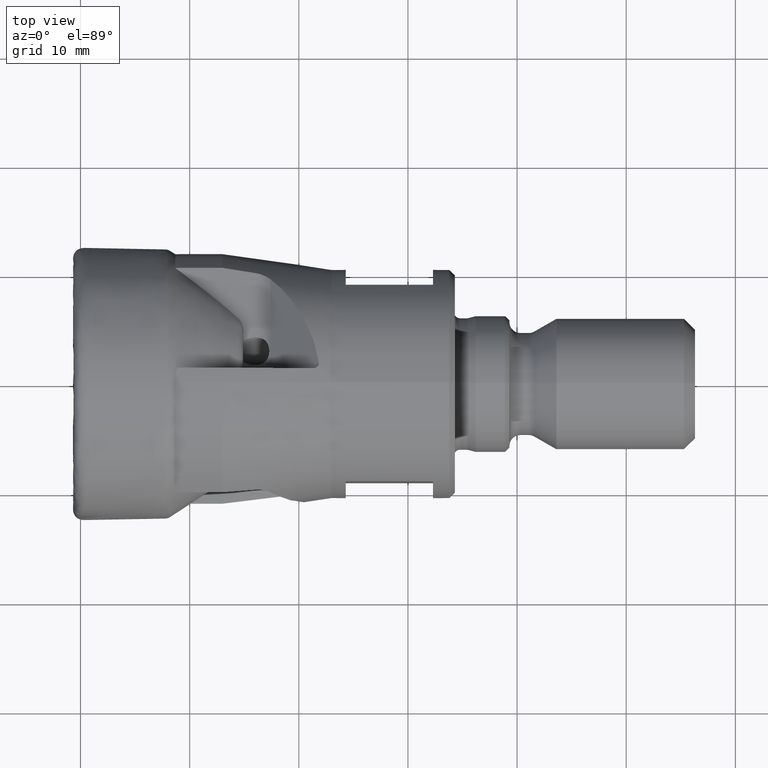
[diagram: clean part render]
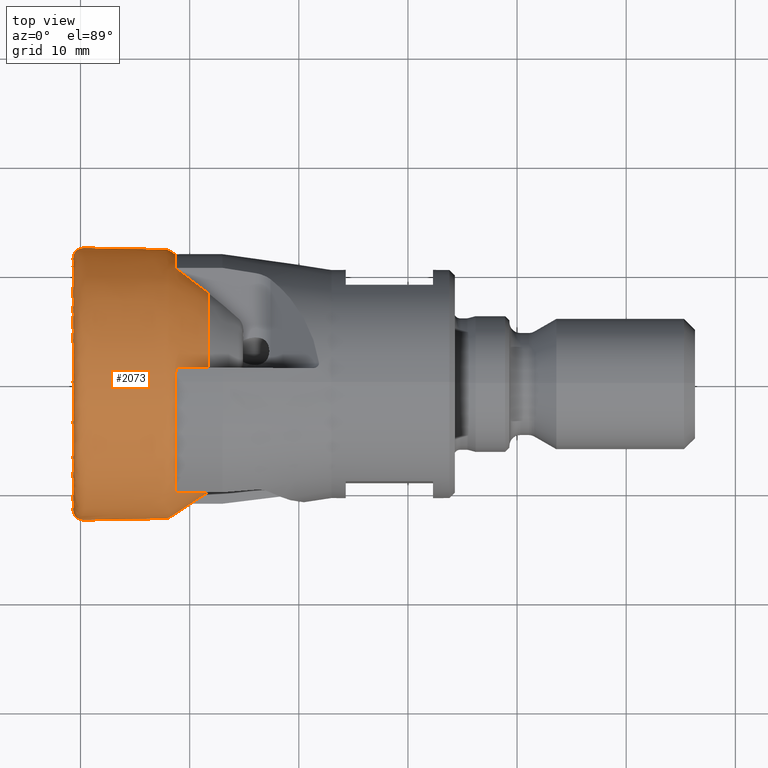
[diagram: same view with one face highlighted and labeled with its STEP entity id]
A machine part, top view. The second image highlights one B-rep face of the part: STEP entity #2073.
In plain terms, the highlighted face is a freeform B-spline surface patch.
Its self-contained STEP definition (entity closure, byte-faithful):
#4 = CARTESIAN_POINT ( 'NONE',  ( 9.697854534202885900, 9.785452042334226200, 5.500000000000000900 ) ) ;
#20 = CARTESIAN_POINT ( 'NONE',  ( 9.312644192174170500, 0.8146614343134170900, 11.44944218127393000 ) ) ;
#45 = CARTESIAN_POINT ( 'NONE',  ( 3.618397559044042000, -12.40899006193122000, 24.81798012386243400 ) ) ;
#61 = CIRCLE ( 'NONE', #3847, 11.89093735962494800 ) ;
#65 = CARTESIAN_POINT ( 'NONE',  ( 0.7427827985230336400, -12.45664443451542700, 0.0000000000000000000 ) ) ;
#70 = CARTESIAN_POINT ( 'NONE',  ( 11.02533837348221400, -10.35061665418278100, 0.0000000000000000000 ) ) ;
#87 = CARTESIAN_POINT ( 'NONE',  ( 11.36594401074865100, -10.12630852607284200, 0.0000000000000000000 ) ) ;
#108 = CARTESIAN_POINT ( 'NONE',  ( 2.503799197649001100, 12.43026562818764100, 1.522268501411135700E-015 ) ) ;
#111 = CARTESIAN_POINT ( 'NONE',  ( 7.931598902397339200, -12.32988648279885700, 24.65977296559770300 ) ) ;
#126 = CARTESIAN_POINT ( 'NONE',  ( 8.816966947396640100, -11.80685904800107400, 23.61371809600214500 ) ) ;
#139 = ORIENTED_EDGE ( 'NONE', *, *, #4576, .F. ) ;
#149 = CARTESIAN_POINT ( 'NONE',  ( 9.613026490505429700, 11.28079217561241700, 1.381498602971025400E-015 ) ) ;
#157 = CARTESIAN_POINT ( 'NONE',  ( 1.280669050184723100, -12.45564415482756500, 0.0000000000000000000 ) ) ;
#168 = ORIENTED_EDGE ( 'NONE', *, *, #3575, .F. ) ;
#195 = CARTESIAN_POINT ( 'NONE',  ( 11.69992267080788700, -9.906364266846539500, 19.81272853369307500 ) ) ;
#238 = CARTESIAN_POINT ( 'NONE',  ( 11.69992267080788700, 9.906364266846541300, 1.213179729058133200E-015 ) ) ;
#240 = B_SPLINE_CURVE_WITH_KNOTS ( 'NONE', 3,
 ( #4324, #1679, #4783, #2109 ),
 .UNSPECIFIED., .F., .F.,
 ( 4, 4 ),
 ( 0.003687136986551863400, 0.003879033988802410200 ),
 .UNSPECIFIED. ) ;
#241 = CARTESIAN_POINT ( 'NONE',  ( 8.684308047586071700, 0.7668746973327035300, 11.86618281036977500 ) ) ;
#252 = DIRECTION ( 'NONE',  ( 0.0000000000000000000, -1.000000000000000000, 0.0000000000000000000 ) ) ;
#281 = CARTESIAN_POINT ( 'NONE',  ( 2.999999999999999100, 0.0000000000000000000, 0.0000000000000000000 ) ) ;
#347 = VERTEX_POINT ( 'NONE', #3973 ) ;
#352 = CARTESIAN_POINT ( 'NONE',  ( 9.954650138526782000, -11.05570116512856400, 0.0000000000000000000 ) ) ;
#355 = CARTESIAN_POINT ( 'NONE',  ( 11.20412038278668700, -9.079077500251957000, 4.725423516291996900 ) ) ;
#404 = B_SPLINE_CURVE_WITH_KNOTS ( 'NONE', 3,
 ( #1191, #4757, #3552, #2210 ),
 .UNSPECIFIED., .F., .F.,
 ( 4, 4 ),
 ( 0.003952355177794303900, 0.004168830985685621800 ),
 .UNSPECIFIED. ) ;
#416 = AXIS2_PLACEMENT_3D ( 'NONE', #281, #3370, #2029 ) ;
#431 = CARTESIAN_POINT ( 'NONE',  ( 2.201019463863450800, -9.072201735140403400, 0.0000000000000000000 ) ) ;
#436 = CARTESIAN_POINT ( 'NONE',  ( 8.810042783175827500, 0.7812887099404332000, 11.78350844684071000 ) ) ;
#445 = CARTESIAN_POINT ( 'NONE',  ( 1.873232307279118800, -12.44144521055320000, 0.0000000000000000000 ) ) ;
#449 = CARTESIAN_POINT ( 'NONE',  ( 9.192252441842184000, 10.16547790507238600, 5.500000000000000900 ) ) ;
#497 = CARTESIAN_POINT ( 'NONE',  ( -0.2331093749268607400, -12.38291119350498300, 0.0000000000000000000 ) ) ;
#499 = CARTESIAN_POINT ( 'NONE',  ( 8.457634350654979400, -12.03595903142141300, 0.0000000000000000000 ) ) ;
#509 = CARTESIAN_POINT ( 'NONE',  ( 2.148070445430538400, 9.108993180804803900, 1.115529934232767100E-015 ) ) ;
#514 = CARTESIAN_POINT ( 'NONE',  ( 7.127617296034902200, 12.34311127391845600, 1.511595171312384500E-015 ) ) ;
#530 = CARTESIAN_POINT ( 'NONE',  ( 8.167987616742655300, 12.24025750950475800, 1.498999217975435700E-015 ) ) ;
#537 = CARTESIAN_POINT ( 'NONE',  ( 6.466077565421617400, -12.35482876684429600, 24.70965753368858100 ) ) ;
#546 = CARTESIAN_POINT ( 'NONE',  ( 8.684308047586071700, 0.0000000000000000000, 0.0000000000000000000 ) ) ;
#555 = CARTESIAN_POINT ( 'NONE',  ( 6.466077565421617400, 12.35482876684429100, 24.70965753368858100 ) ) ;
#573 = CARTESIAN_POINT ( 'NONE',  ( 7.572863387765953500, 12.33263988398824300, 1.510312795896318700E-015 ) ) ;
#578 = CARTESIAN_POINT ( 'NONE',  ( 7.931598902397339200, 12.32988648279885700, 1.509975601500983500E-015 ) ) ;
#592 = CARTESIAN_POINT ( 'NONE',  ( 11.58585300382495500, 9.981485319141596000, 1.222379404682305500E-015 ) ) ;
#641 = EDGE_CURVE ( 'NONE', #4559, #1741, #2387, .T. ) ;
#659 = DIRECTION ( 'NONE',  ( -1.000000000000000000, -0.0000000000000000000, -0.0000000000000000000 ) ) ;
#661 = CARTESIAN_POINT ( 'NONE',  ( 11.69992267080788700, -9.906364266846541300, 0.0000000000000000000 ) ) ;
#676 = CARTESIAN_POINT ( 'NONE',  ( 1.873232307279118800, 12.44144521055320000, 1.523637605387114200E-015 ) ) ;
#756 = B_SPLINE_CURVE_WITH_KNOTS ( 'NONE', 3,
 ( #2666, #436, #4832, #3523, #20, #3092, #3989, #1328, #4431, #2679 ),
 .UNSPECIFIED., .F., .F.,
 ( 4, 2, 2, 2, 4 ),
 ( 0.0002996725593524206800, 0.0007529649195381801500, 0.001206257279723939600, 0.002112842000095458600, 0.003926011440838503800 ),
 .UNSPECIFIED. ) ;
#807 = ORIENTED_EDGE ( 'NONE', *, *, #4763, .F. ) ;
#832 = VERTEX_POINT ( 'NONE', #3464 ) ;
#837 = CARTESIAN_POINT ( 'NONE',  ( -0.6087784501833377600, -11.03092844382917500, 22.06185688765834700 ) ) ;
#864 = CARTESIAN_POINT ( 'NONE',  ( 5.729651580530291900, 12.36908483579386700, 1.514776015253702500E-015 ) ) ;
#865 = CARTESIAN_POINT ( 'NONE',  ( 0.3477757984332352500, -10.32826223823449900, 0.0000000000000000000 ) ) ;
#866 = CARTESIAN_POINT ( 'NONE',  ( 1.494868875938148100, -9.562868073355081900, 0.0000000000000000000 ) ) ;
#882 = CARTESIAN_POINT ( 'NONE',  ( 2.712359815875601500, 8.819488321375047200, 1.080075814288941200E-015 ) ) ;
#884 = CARTESIAN_POINT ( 'NONE',  ( 8.816966947396641900, -11.80685904800107400, 0.0000000000000000000 ) ) ;
#889 = CARTESIAN_POINT ( 'NONE',  ( 2.999999999999999100, 0.0000000000000000000, 0.0000000000000000000 ) ) ;
#906 = CARTESIAN_POINT ( 'NONE',  ( 1.494868875938148100, -9.562868073355081900, 0.0000000000000000000 ) ) ;
#918 = CARTESIAN_POINT ( 'NONE',  ( 8.457634350654979400, -12.03595903142141300, 0.0000000000000000000 ) ) ;
#925 = B_SPLINE_CURVE_WITH_KNOTS ( 'NONE', 3,
 ( #3576, #882, #509, #2193, #1787, #4901, #1816, #3596, #5301, #1323, #2229, #2693, #4019, #1355, #1801, #4922, #4428, #2268, #5352, #3163, #864, #1308, #5415, #573, #2749, #530, #3248, #5432, #997 ),
 .UNSPECIFIED., .F., .F.,
 ( 4, 1, 1, 1, 1, 1, 1, 1, 1, 1, 1, 1, 1, 1, 1, 1, 1, 1, 1, 1, 1, 1, 1, 1, 1, 1, 4 ),
 ( 0.005206686058441639000, 0.03485770881821660000, 0.05507946644783250100, 0.06943857563610003600, 0.09158117670834956000, 0.1092554171633217100, 0.1216599455086802800, 0.1344408069046131000, 0.1487155461250843400, 0.1596131329079916700, 0.1748590712078582100, 0.1853888897470992700, 0.2007221162048279900, 0.2180797627302767900, 0.2331128372883491700, 0.2514738600996334100, 0.2655145074047095000, 0.2754002533527893400, 0.2993621918551556700, 0.3196282905980347700, 0.3433429256770412800, 0.3586542540690916300, 0.3728470926088104900, 0.3792658224864324800, 0.3873682078360112200, 0.3926476339522040900, 0.4031530436747359800 ),
 .UNSPECIFIED. ) ;
#935 = CARTESIAN_POINT ( 'NONE',  ( 7.127617296034902200, -12.34311127391845600, 0.0000000000000000000 ) ) ;
#941 = CARTESIAN_POINT ( 'NONE',  ( 4.885557707654206700, -12.38497825617316600, 24.76995651234632200 ) ) ;
#959 = EDGE_LOOP ( 'NONE', ( #139, #3123, #2351, #3631, #1593, #4586, #5541, #807, #3928, #3591, #3095, #168, #1008, #3599, #2776, #2198 ) ) ;
#961 = CARTESIAN_POINT ( 'NONE',  ( 6.466077565421617400, -12.35482876684429600, 0.0000000000000000000 ) ) ;
#962 = CARTESIAN_POINT ( 'NONE',  ( 3.099848958126749700, -8.012817241853138500, 2.878606574653674400 ) ) ;
#983 = CARTESIAN_POINT ( 'NONE',  ( 3.093057274502867500, -12.41888942860262400, 24.83777885720523700 ) ) ;
#985 = CARTESIAN_POINT ( 'NONE',  ( 5.729651580530291900, -12.36908483579386700, 0.0000000000000000000 ) ) ;
#997 = CARTESIAN_POINT ( 'NONE',  ( 8.684308047586071700, 11.89093735962494800, 1.456219837632640100E-015 ) ) ;
#1001 = CARTESIAN_POINT ( 'NONE',  ( 9.954650138526782000, 11.05570116512856400, 1.353932904420436100E-015 ) ) ;
#1008 = ORIENTED_EDGE ( 'NONE', *, *, #3044, .T. ) ;
#1016 = CARTESIAN_POINT ( 'NONE',  ( 3.093057274502867500, 12.41888942860261800, 24.83777885720523700 ) ) ;
#1025 = CARTESIAN_POINT ( 'NONE',  ( 7.931598902397339200, 12.32988648279885200, 24.65977296559770300 ) ) ;
#1074 = EDGE_CURVE ( 'NONE', #1741, #5686, #240, .T. ) ;
#1084 = CARTESIAN_POINT ( 'NONE',  ( 2.999999999999999100, -1.119999999999999900, 8.521609932996399900 ) ) ;
#1142 = DIRECTION ( 'NONE',  ( 1.000000000000000000, 0.0000000000000000000, 0.0000000000000000000 ) ) ;
#1164 = CIRCLE ( 'NONE', #4855, 8.471322961863810600 ) ;
#1191 = CARTESIAN_POINT ( 'NONE',  ( 2.999999999999997800, 6.604713154266651300, 5.499999999999997300 ) ) ;
#1199 = CARTESIAN_POINT ( 'NONE',  ( 11.69992267080788700, -8.882789371799694000, 4.385442504890058000 ) ) ;
#1228 = CARTESIAN_POINT ( 'NONE',  ( 4.213313843509619800, -12.39772127159911200, 0.0000000000000000000 ) ) ;
#1229 = CARTESIAN_POINT ( 'NONE',  ( 4.885557707654206700, -12.38497825617316500, 0.0000000000000000000 ) ) ;
#1277 = CARTESIAN_POINT ( 'NONE',  ( -0.7317178983251391200, -11.53285104951244700, 0.0000000000000000000 ) ) ;
#1281 = B_SPLINE_CURVE_WITH_KNOTS ( 'NONE', 3,
 ( #4027, #3145, #962, #5383 ),
 .UNSPECIFIED., .F., .F.,
 ( 4, 4 ),
 ( 0.003951209680980457600, 0.004167688017339450300 ),
 .UNSPECIFIED. ) ;
#1297 = CARTESIAN_POINT ( 'NONE',  ( -0.2138426126984946700, 10.65069075299570200, 1.304333433936449800E-015 ) ) ;
#1304 = VERTEX_POINT ( 'NONE', #2270 ) ;
#1308 = CARTESIAN_POINT ( 'NONE',  ( 6.466077565421617400, 12.35482876684429600, 1.513030150332951000E-015 ) ) ;
#1310 = CARTESIAN_POINT ( 'NONE',  ( 0.3477757984332352500, -10.32826223823449900, 0.0000000000000000000 ) ) ;
#1323 = CARTESIAN_POINT ( 'NONE',  ( -0.5939614367127222800, 12.00772177293700900, 1.470521803427928800E-015 ) ) ;
#1326 = DIRECTION ( 'NONE',  ( -1.000000000000000000, -0.0000000000000000000, -0.0000000000000000000 ) ) ;
#1328 = CARTESIAN_POINT ( 'NONE',  ( 10.69488647617847700, 0.9011636507506480800, 10.52991939404901200 ) ) ;
#1338 = CARTESIAN_POINT ( 'NONE',  ( 0.9026356447868471000, -9.945694681804564400, 0.0000000000000000000 ) ) ;
#1355 = CARTESIAN_POINT ( 'NONE',  ( 1.280669050184723100, 12.45564415482756500, 1.525376474552801800E-015 ) ) ;
#1357 = CARTESIAN_POINT ( 'NONE',  ( 5.729651580530291900, -12.36908483579386700, 0.0000000000000000000 ) ) ;
#1387 = CARTESIAN_POINT ( 'NONE',  ( 7.127617296034902200, -12.34311127391845600, 0.0000000000000000000 ) ) ;
#1400 = CARTESIAN_POINT ( 'NONE',  ( 8.816966947396640100, 11.80685904800107300, 23.61371809600214500 ) ) ;
#1419 = B_SPLINE_CURVE_WITH_KNOTS ( 'NONE', 3,
 ( #3558, #3086, #3539, #906, #1338, #865, #4871, #4020, #3577, #3108, #497, #2094, #65, #5630, #445, #4000, #4444, #2695, #3125, #1788, #1357, #3142, #935, #3966, #4459, #4308, #918, #884, #5191, #2552, #352, #2768, #4479, #4562, #4102, #5400, #4522 ),
 .UNSPECIFIED., .F., .F.,
 ( 4, 1, 1, 1, 1, 1, 1, 1, 1, 1, 1, 1, 1, 1, 1, 1, 1, 1, 1, 1, 1, 1, 1, 1, 1, 1, 1, 1, 1, 1, 1, 1, 1, 1, 4 ),
 ( 0.0000000000000000000, 0.03485770881821660000, 0.05507946644783250100, 0.06943857563610003600, 0.09158117670834957400, 0.1092554171633217100, 0.1216599455086802800, 0.1344408069046131000, 0.1487155461250843400, 0.1596131329079916700, 0.1748590712078581800, 0.1853888897470992700, 0.2007221162048279900, 0.2180797627302767900, 0.2331128372883491400, 0.2514738600996334100, 0.2655145074047095000, 0.2754002533527893400, 0.2993621918551556700, 0.3196282905980347100, 0.3433429256770412800, 0.3586542540690916300, 0.3728470926088104900, 0.3792658224864324200, 0.3873682078360112200, 0.3926476339522041400, 0.4077926530532423600, 0.4216536615863865600, 0.4334034525286211700, 0.4438325126030546200, 0.4545797539371134700, 0.4671771103125601500, 0.4788081670242497200, 0.4890075464082854800, 0.4999999999999999400 ),
 .UNSPECIFIED. ) ;
#1420 = CARTESIAN_POINT ( 'NONE',  ( 7.127617296034903100, 12.34311127391845300, 24.68622254783690600 ) ) ;
#1444 = CARTESIAN_POINT ( 'NONE',  ( 6.466077565421617400, 12.35482876684429600, 1.513030150332951000E-015 ) ) ;
#1468 = CARTESIAN_POINT ( 'NONE',  ( 10.66807731982033200, -10.58589076227329400, 0.0000000000000000000 ) ) ;
#1510 = DIRECTION ( 'NONE',  ( 0.0000000000000000000, -1.000000000000000000, 0.0000000000000000000 ) ) ;
#1514 = VERTEX_POINT ( 'NONE', #3412 ) ;
#1535 = CARTESIAN_POINT ( 'NONE',  ( 1.873232307279119000, 12.44144521055319400, 24.88289042110638900 ) ) ;
#1568 = DIRECTION ( 'NONE',  ( -1.000000000000000000, -0.0000000000000000000, -0.0000000000000000000 ) ) ;
#1590 = CARTESIAN_POINT ( 'NONE',  ( 4.213313843509619800, -12.39772127159911400, 24.79544254319821700 ) ) ;
#1591 = VERTEX_POINT ( 'NONE', #2439 ) ;
#1593 = ORIENTED_EDGE ( 'NONE', *, *, #1074, .F. ) ;
#1661 = CARTESIAN_POINT ( 'NONE',  ( 9.949986535004933700, -9.560430860448953200, 5.559151992547215900 ) ) ;
#1679 = CARTESIAN_POINT ( 'NONE',  ( 3.050296699543893400, -1.120000000000000300, 8.482000013285096800 ) ) ;
#1699 = CARTESIAN_POINT ( 'NONE',  ( 0.3477757984332352500, 10.32826223823449800, 20.65652447646899500 ) ) ;
#1736 = CARTESIAN_POINT ( 'NONE',  ( 8.939606687400869900, -9.940984578413568000, 6.218290367071171300 ) ) ;
#1738 = CARTESIAN_POINT ( 'NONE',  ( 1.494868875938148100, -9.562868073355080200, 19.12573614671015700 ) ) ;
#1741 = VERTEX_POINT ( 'NONE', #1084 ) ;
#1749 = CARTESIAN_POINT ( 'NONE',  ( 2.503799197649001100, 12.43026562818763700, 24.86053125637527500 ) ) ;
#1755 = CARTESIAN_POINT ( 'NONE',  ( 2.830805181008440500, 8.759725705247921800, 1.072757004634066000E-015 ) ) ;
#1769 = DIRECTION ( 'NONE',  ( 0.0000000000000000000, 0.0000000000000000000, 1.000000000000000000 ) ) ;
#1779 = CARTESIAN_POINT ( 'NONE',  ( 3.146733260527753800, -1.120000000000003000, 8.396958540102529500 ) ) ;
#1787 = CARTESIAN_POINT ( 'NONE',  ( 0.9026356447868471000, 9.945694681804564400, 1.217996315736881400E-015 ) ) ;
#1788 = CARTESIAN_POINT ( 'NONE',  ( 4.885557707654206700, -12.38497825617316500, 0.0000000000000000000 ) ) ;
#1801 = CARTESIAN_POINT ( 'NONE',  ( 1.873232307279118800, 12.44144521055320000, 1.523637605387114200E-015 ) ) ;
#1807 = CARTESIAN_POINT ( 'NONE',  ( 9.613026490505429700, -11.28079217561241700, 22.56158435122483000 ) ) ;
#1816 = CARTESIAN_POINT ( 'NONE',  ( -0.2138426126984946700, 10.65069075299570200, 1.304333433936449800E-015 ) ) ;
#1820 = CARTESIAN_POINT ( 'NONE',  ( 4.885557707654206700, 12.38497825617316100, 24.76995651234632200 ) ) ;
#1839 = CARTESIAN_POINT ( 'NONE',  ( 8.167987616742655300, -12.24025750950475800, 0.0000000000000000000 ) ) ;
#1851 = DIRECTION ( 'NONE',  ( 1.000000000000000000, 0.0000000000000000000, 0.0000000000000000000 ) ) ;
#1866 = CARTESIAN_POINT ( 'NONE',  ( 8.457634350654979400, 12.03595903142141000, 24.07191806284281900 ) ) ;
#1879 = CARTESIAN_POINT ( 'NONE',  ( 4.885557707654206700, 12.38497825617316500, 1.516722397893203500E-015 ) ) ;
#1892 = CIRCLE ( 'NONE', #4312, 8.471322961863810600 ) ;
#1921 = AXIS2_PLACEMENT_3D ( 'NONE', #4449, #3971, #3111 ) ;
#1924 = CARTESIAN_POINT ( 'NONE',  ( 11.58585300382495500, -9.981485319141596000, 19.96297063828318800 ) ) ;
#1972 = CIRCLE ( 'NONE', #4384, 9.906364266846541300 ) ;
#1978 = CARTESIAN_POINT ( 'NONE',  ( 3.146733260527738700, 0.0000000000000000000, 0.0000000000000000000 ) ) ;
#1999 = DIRECTION ( 'NONE',  ( -1.000000000000000000, -0.0000000000000000000, -0.0000000000000000000 ) ) ;
#2029 = DIRECTION ( 'NONE',  ( 0.0000000000000000000, 0.0000000000000000000, 1.000000000000000000 ) ) ;
#2073 = ADVANCED_FACE ( 'NONE', ( #2636 ), #2885, .T. ) ;
#2094 = CARTESIAN_POINT ( 'NONE',  ( 0.2348483877683119900, -12.49277643049290300, 0.0000000000000000000 ) ) ;
#2109 = CARTESIAN_POINT ( 'NONE',  ( 3.146733260527753800, -1.120000000000003000, 8.396958540102529500 ) ) ;
#2138 = CARTESIAN_POINT ( 'NONE',  ( 1.280669050184723100, 12.45564415482756200, 24.91128830965512400 ) ) ;
#2167 = CARTESIAN_POINT ( 'NONE',  ( -0.7317178983251390000, 11.53285104951244300, 23.06570209902489000 ) ) ;
#2174 = CARTESIAN_POINT ( 'NONE',  ( 0.9026356447868471000, -9.945694681804564400, 19.89138936360912200 ) ) ;
#2193 = CARTESIAN_POINT ( 'NONE',  ( 1.494868875938148100, 9.562868073355081900, 1.171113577670271600E-015 ) ) ;
#2194 = VERTEX_POINT ( 'NONE', #4761 ) ;
#2197 = CARTESIAN_POINT ( 'NONE',  ( 1.494868875938148100, 9.562868073355078400, 19.12573614671015700 ) ) ;
#2198 = ORIENTED_EDGE ( 'NONE', *, *, #2710, .F. ) ;
#2210 = CARTESIAN_POINT ( 'NONE',  ( 3.146733260527739600, 6.443082548299460500, 5.499999999999997300 ) ) ;
#2212 = VERTEX_POINT ( 'NONE', #2215 ) ;
#2215 = CARTESIAN_POINT ( 'NONE',  ( 11.69992267080788700, -8.882789371799694000, 4.385442504890058000 ) ) ;
#2218 = CARTESIAN_POINT ( 'NONE',  ( 1.873232307279118800, -12.44144521055320000, 0.0000000000000000000 ) ) ;
#2221 = CARTESIAN_POINT ( 'NONE',  ( 8.684308047565556500, -10.03439173743338100, 6.380076312284160200 ) ) ;
#2229 = CARTESIAN_POINT ( 'NONE',  ( -0.2331093749268607400, 12.38291119350498300, 1.516469255725181000E-015 ) ) ;
#2231 = EDGE_CURVE ( 'NONE', #4038, #1591, #1419, .T. ) ;
#2250 = CARTESIAN_POINT ( 'NONE',  ( 10.66807731982033200, 10.58589076227329300, 21.17178152454658500 ) ) ;
#2268 = CARTESIAN_POINT ( 'NONE',  ( 3.618397559044042500, 12.40899006193121900, 1.519662995999538200E-015 ) ) ;
#2270 = CARTESIAN_POINT ( 'NONE',  ( 3.146733260527739600, -7.984680994964115500, 2.829873165507583700 ) ) ;
#2274 = CARTESIAN_POINT ( 'NONE',  ( 9.954650138526782000, -11.05570116512856400, 22.11140233025712800 ) ) ;
#2293 = CARTESIAN_POINT ( 'NONE',  ( 7.572863387765953500, 12.33263988398824300, 1.510312795896318700E-015 ) ) ;
#2310 = CARTESIAN_POINT ( 'NONE',  ( 8.816966947396641900, 11.80685904800107400, 1.445923214111848200E-015 ) ) ;
#2335 = CARTESIAN_POINT ( 'NONE',  ( 7.572863387765954400, -12.33263988398824500, 24.66527976797647900 ) ) ;
#2351 = ORIENTED_EDGE ( 'NONE', *, *, #2634, .T. ) ;
#2387 = CIRCLE ( 'NONE', #416, 8.594895918517158500 ) ;
#2402 = AXIS2_PLACEMENT_3D ( 'NONE', #889, #1326, #1769 ) ;
#2439 = CARTESIAN_POINT ( 'NONE',  ( 11.69992267080788700, -9.906364266846541300, 0.0000000000000000000 ) ) ;
#2452 = CARTESIAN_POINT ( 'NONE',  ( 3.146733260527738300, 8.471322961863808800, 16.94264592372761800 ) ) ;
#2497 = EDGE_CURVE ( 'NONE', #5686, #2569, #1164, .T. ) ;
#2552 = CARTESIAN_POINT ( 'NONE',  ( 9.613026490505429700, -11.28079217561241700, 0.0000000000000000000 ) ) ;
#2569 = VERTEX_POINT ( 'NONE', #5127 ) ;
#2592 = CARTESIAN_POINT ( 'NONE',  ( -0.2138426126984946400, -10.65069075299570200, 21.30138150599140100 ) ) ;
#2634 = EDGE_CURVE ( 'NONE', #3401, #2569, #404, .T. ) ;
#2636 = FACE_OUTER_BOUND ( 'NONE', #959, .T. ) ;
#2641 = CARTESIAN_POINT ( 'NONE',  ( 0.2348483877683120200, -12.49277643049290100, 24.98555286098579500 ) ) ;
#2642 = CARTESIAN_POINT ( 'NONE',  ( 0.9026356447868471000, 9.945694681804564400, 1.217996315736881400E-015 ) ) ;
#2666 = CARTESIAN_POINT ( 'NONE',  ( 8.684308047586071700, 0.7668746973327035300, 11.86618281036977500 ) ) ;
#2679 = CARTESIAN_POINT ( 'NONE',  ( 11.69992267080787200, 0.9559680899435525300, 9.860130729278584000 ) ) ;
#2693 = CARTESIAN_POINT ( 'NONE',  ( 0.2348483877683119900, 12.49277643049290300, 1.529923866806663000E-015 ) ) ;
#2695 = CARTESIAN_POINT ( 'NONE',  ( 3.618397559044042500, -12.40899006193121900, 0.0000000000000000000 ) ) ;
#2710 = EDGE_CURVE ( 'NONE', #832, #4342, #61, .T. ) ;
#2720 = CARTESIAN_POINT ( 'NONE',  ( 10.66807731982033200, 10.58589076227329400, 1.296397723814152500E-015 ) ) ;
#2736 = CARTESIAN_POINT ( 'NONE',  ( 9.238802728569901000, 11.52673974379141300, 23.05347948758283400 ) ) ;
#2749 = CARTESIAN_POINT ( 'NONE',  ( 7.931598902397339200, 12.32988648279885700, 1.509975601500983500E-015 ) ) ;
#2752 = CARTESIAN_POINT ( 'NONE',  ( 10.30513665564160800, 10.82491709291735100, 1.325670006887670500E-015 ) ) ;
#2768 = CARTESIAN_POINT ( 'NONE',  ( 10.30513665564160800, -10.82491709291735100, 0.0000000000000000000 ) ) ;
#2772 = CARTESIAN_POINT ( 'NONE',  ( 9.613026490505429700, 11.28079217561241300, 22.56158435122483000 ) ) ;
#2776 = ORIENTED_EDGE ( 'NONE', *, *, #3980, .T. ) ;
#2793 = CARTESIAN_POINT ( 'NONE',  ( 8.816966947396641900, -11.80685904800107400, 0.0000000000000000000 ) ) ;
#2879 = CARTESIAN_POINT ( 'NONE',  ( 2.999999999999997800, 6.604713154266651300, 5.499999999999997300 ) ) ;
#2885 =( BOUNDED_SURFACE ( )  B_SPLINE_SURFACE ( 3, 3, ( 
 ( #2957, #5095, #2452, #5283 ),
 ( #3073, #3087, #4873, #1755 ),
 ( #431, #4407, #3518, #5719 ),
 ( #866, #1738, #2197, #4853 ),
 ( #3969, #2174, #5264, #2642 ),
 ( #1310, #3038, #1699, #5214 ),
 ( #5236, #2592, #5708, #1297 ),
 ( #3488, #837, #3062, #3936 ),
 ( #1277, #4836, #2167, #5255 ),
 ( #5084, #3783, #3763, #5051 ),
 ( #3295, #5291, #3698, #3722 ),
 ( #4244, #2641, #3794, #5061 ),
 ( #3002, #5124, #3065, #5006 ),
 ( #157, #4815, #2138, #5723 ),
 ( #2218, #3271, #1535, #676 ),
 ( #4513, #5673, #1749, #108 ),
 ( #3630, #983, #1016, #3695 ),
 ( #4585, #45, #4565, #5483 ),
 ( #1228, #1590, #4911, #4720 ),
 ( #1229, #941, #1820, #1879 ),
 ( #985, #4084, #3212, #4962 ),
 ( #961, #537, #555, #1444 ),
 ( #1387, #3655, #1420, #514 ),
 ( #4546, #2335, #5001, #2293 ),
 ( #4525, #111, #1025, #578 ),
 ( #1839, #5339, #4115, #5420 ),
 ( #499, #3633, #1866, #4980 ),
 ( #2793, #126, #1400, #2310 ),
 ( #5382, #5356, #2736, #5405 ),
 ( #3228, #1807, #2772, #149 ),
 ( #4061, #2274, #4927, #1001 ),
 ( #3143, #3675, #4108, #2752 ),
 ( #1468, #4484, #2250, #2720 ),
 ( #70, #3193, #3601, #4041 ),
 ( #87, #4943, #3168, #3619 ),
 ( #4507, #1924, #4185, #592 ),
 ( #661, #195, #5070, #238 ) ),
 .UNSPECIFIED., .F., .F., .T. ) 
 B_SPLINE_SURFACE_WITH_KNOTS ( ( 4, 1, 1, 1, 1, 1, 1, 1, 1, 1, 1, 1, 1, 1, 1, 1, 1, 1, 1, 1, 1, 1, 1, 1, 1, 1, 1, 1, 1, 1, 1, 1, 1, 1, 4 ),
 ( 4, 4 ),
 ( 0.0000000000000000000, 0.03485770881821660000, 0.05507946644783250100, 0.06943857563610003600, 0.09158117670834957400, 0.1092554171633217100, 0.1216599455086802800, 0.1344408069046131000, 0.1487155461250843400, 0.1596131329079916700, 0.1748590712078581800, 0.1853888897470992700, 0.2007221162048279900, 0.2180797627302767900, 0.2331128372883491400, 0.2514738600996334100, 0.2655145074047095000, 0.2754002533527893400, 0.2993621918551556700, 0.3196282905980347100, 0.3433429256770412800, 0.3586542540690916300, 0.3728470926088104900, 0.3792658224864324200, 0.3873682078360112200, 0.3926476339522041400, 0.4077926530532423600, 0.4216536615863865600, 0.4334034525286211700, 0.4438325126030546200, 0.4545797539371134700, 0.4671771103125601500, 0.4788081670242497200, 0.4890075464082854800, 0.5000000000000000000 ),
 ( 0.0000000000000000000, 1.000000000000000000 ),
 .UNSPECIFIED. ) 
 GEOMETRIC_REPRESENTATION_ITEM ( )  RATIONAL_B_SPLINE_SURFACE ( (
 ( 1.000000000000000000, 0.3333333333333334300, 0.3333333333333334300, 1.000000000000000000),
 ( 1.000000000000000000, 0.3333333333333334300, 0.3333333333333334300, 1.000000000000000000),
 ( 1.000000000000000000, 0.3333333333333334300, 0.3333333333333334300, 1.000000000000000000),
 ( 1.000000000000000000, 0.3333333333333334300, 0.3333333333333334300, 1.000000000000000000),
 ( 1.000000000000000000, 0.3333333333333334300, 0.3333333333333334300, 1.000000000000000000),
 ( 1.000000000000000000, 0.3333333333333334300, 0.3333333333333334300, 1.000000000000000000),
 ( 1.000000000000000000, 0.3333333333333334300, 0.3333333333333334300, 1.000000000000000000),
 ( 1.000000000000000000, 0.3333333333333334300, 0.3333333333333334300, 1.000000000000000000),
 ( 1.000000000000000000, 0.3333333333333334300, 0.3333333333333334300, 1.000000000000000000),
 ( 1.000000000000000000, 0.3333333333333334300, 0.3333333333333334300, 1.000000000000000000),
 ( 1.000000000000000000, 0.3333333333333334300, 0.3333333333333334300, 1.000000000000000000),
 ( 1.000000000000000000, 0.3333333333333334300, 0.3333333333333334300, 1.000000000000000000),
 ( 1.000000000000000000, 0.3333333333333334300, 0.3333333333333334300, 1.000000000000000000),
 ( 1.000000000000000000, 0.3333333333333334300, 0.3333333333333334300, 1.000000000000000000),
 ( 1.000000000000000000, 0.3333333333333334300, 0.3333333333333334300, 1.000000000000000000),
 ( 1.000000000000000000, 0.3333333333333334300, 0.3333333333333334300, 1.000000000000000000),
 ( 1.000000000000000000, 0.3333333333333334300, 0.3333333333333334300, 1.000000000000000000),
 ( 1.000000000000000000, 0.3333333333333334300, 0.3333333333333334300, 1.000000000000000000),
 ( 1.000000000000000000, 0.3333333333333334300, 0.3333333333333334300, 1.000000000000000000),
 ( 1.000000000000000000, 0.3333333333333334300, 0.3333333333333334300, 1.000000000000000000),
 ( 1.000000000000000000, 0.3333333333333334300, 0.3333333333333334300, 1.000000000000000000),
 ( 1.000000000000000000, 0.3333333333333334300, 0.3333333333333334300, 1.000000000000000000),
 ( 1.000000000000000000, 0.3333333333333334300, 0.3333333333333334300, 1.000000000000000000),
 ( 1.000000000000000000, 0.3333333333333334300, 0.3333333333333334300, 1.000000000000000000),
 ( 1.000000000000000000, 0.3333333333333334300, 0.3333333333333334300, 1.000000000000000000),
 ( 1.000000000000000000, 0.3333333333333334300, 0.3333333333333334300, 1.000000000000000000),
 ( 1.000000000000000000, 0.3333333333333334300, 0.3333333333333334300, 1.000000000000000000),
 ( 1.000000000000000000, 0.3333333333333334300, 0.3333333333333334300, 1.000000000000000000),
 ( 1.000000000000000000, 0.3333333333333334300, 0.3333333333333334300, 1.000000000000000000),
 ( 1.000000000000000000, 0.3333333333333334300, 0.3333333333333334300, 1.000000000000000000),
 ( 1.000000000000000000, 0.3333333333333334300, 0.3333333333333334300, 1.000000000000000000),
 ( 1.000000000000000000, 0.3333333333333334300, 0.3333333333333334300, 1.000000000000000000),
 ( 1.000000000000000000, 0.3333333333333334300, 0.3333333333333334300, 1.000000000000000000),
 ( 1.000000000000000000, 0.3333333333333334300, 0.3333333333333334300, 1.000000000000000000),
 ( 1.000000000000000000, 0.3333333333333334300, 0.3333333333333334300, 1.000000000000000000),
 ( 1.000000000000000000, 0.3333333333333334300, 0.3333333333333334300, 1.000000000000000000),
 ( 1.000000000000000000, 0.3333333333333334300, 0.3333333333333334300, 1.000000000000000000) ) ) 
 REPRESENTATION_ITEM ( '' )  SURFACE ( )  );
#2957 = CARTESIAN_POINT ( 'NONE',  ( 3.146733260527738700, -8.471322961863810600, 0.0000000000000000000 ) ) ;
#3002 = CARTESIAN_POINT ( 'NONE',  ( 0.7427827985230336400, -12.45664443451542700, 0.0000000000000000000 ) ) ;
#3029 = VERTEX_POINT ( 'NONE', #2221 ) ;
#3038 = CARTESIAN_POINT ( 'NONE',  ( 0.3477757984332352500, -10.32826223823449900, 20.65652447646899500 ) ) ;
#3044 = EDGE_CURVE ( 'NONE', #5646, #347, #756, .T. ) ;
#3062 = CARTESIAN_POINT ( 'NONE',  ( -0.6087784501833377600, 11.03092844382917200, 22.06185688765834700 ) ) ;
#3065 = CARTESIAN_POINT ( 'NONE',  ( 0.7427827985230336400, 12.45664443451542300, 24.91328886903084700 ) ) ;
#3070 = CARTESIAN_POINT ( 'NONE',  ( 9.697854534189350100, -9.655865741986568600, 5.724450056184679200 ) ) ;
#3073 = CARTESIAN_POINT ( 'NONE',  ( 2.830805181008440500, -8.759725705247921800, 0.0000000000000000000 ) ) ;
#3076 = CARTESIAN_POINT ( 'NONE',  ( 8.939606687419718900, 10.35568971518472400, 5.500000000000000000 ) ) ;
#3086 = CARTESIAN_POINT ( 'NONE',  ( 2.830805181008440500, -8.759725705247921800, 0.0000000000000000000 ) ) ;
#3087 = CARTESIAN_POINT ( 'NONE',  ( 2.830805181008440500, -8.759725705247923600, 17.51945141049584000 ) ) ;
#3092 = CARTESIAN_POINT ( 'NONE',  ( 9.689654948067264700, 0.8395022144116094400, 11.19882425775765900 ) ) ;
#3095 = ORIENTED_EDGE ( 'NONE', *, *, #4457, .T. ) ;
#3108 = CARTESIAN_POINT ( 'NONE',  ( -0.5939614367127222800, -12.00772177293700900, 0.0000000000000000000 ) ) ;
#3111 = DIRECTION ( 'NONE',  ( 0.0000000000000000000, -1.000000000000000000, 0.0000000000000000000 ) ) ;
#3113 = CARTESIAN_POINT ( 'NONE',  ( 3.146733260527738700, -8.471322961863810600, 0.0000000000000000000 ) ) ;
#3123 = ORIENTED_EDGE ( 'NONE', *, *, #5449, .F. ) ;
#3125 = CARTESIAN_POINT ( 'NONE',  ( 4.213313843509619800, -12.39772127159911200, 0.0000000000000000000 ) ) ;
#3141 = CARTESIAN_POINT ( 'NONE',  ( 2.999999999999996000, -8.065496297947710500, 2.969849376304248200 ) ) ;
#3142 = CARTESIAN_POINT ( 'NONE',  ( 6.466077565421617400, -12.35482876684429600, 0.0000000000000000000 ) ) ;
#3143 = CARTESIAN_POINT ( 'NONE',  ( 10.30513665564160800, -10.82491709291735100, 0.0000000000000000000 ) ) ;
#3145 = CARTESIAN_POINT ( 'NONE',  ( 3.050812208223451900, -8.039681410368855200, 2.925136679425989900 ) ) ;
#3163 = CARTESIAN_POINT ( 'NONE',  ( 4.885557707654206700, 12.38497825617316500, 1.516722397893203500E-015 ) ) ;
#3168 = CARTESIAN_POINT ( 'NONE',  ( 11.36594401074865100, 10.12630852607284000, 20.25261705214568100 ) ) ;
#3193 = CARTESIAN_POINT ( 'NONE',  ( 11.02533837348221400, -10.35061665418278100, 20.70123330836555600 ) ) ;
#3212 = CARTESIAN_POINT ( 'NONE',  ( 5.729651580530291900, 12.36908483579386200, 24.73816967158772300 ) ) ;
#3228 = CARTESIAN_POINT ( 'NONE',  ( 9.613026490505429700, -11.28079217561241700, 0.0000000000000000000 ) ) ;
#3248 = CARTESIAN_POINT ( 'NONE',  ( 8.410526148432300200, 12.06918617639674300, 1.478049021923775400E-015 ) ) ;
#3271 = CARTESIAN_POINT ( 'NONE',  ( 1.873232307279119000, -12.44144521055319800, 24.88289042110638900 ) ) ;
#3295 = CARTESIAN_POINT ( 'NONE',  ( -0.2331093749268607400, -12.38291119350498300, 0.0000000000000000000 ) ) ;
#3321 = CARTESIAN_POINT ( 'NONE',  ( 3.146733260527738700, 0.0000000000000000000, 0.0000000000000000000 ) ) ;
#3370 = DIRECTION ( 'NONE',  ( -1.000000000000000000, -0.0000000000000000000, -0.0000000000000000000 ) ) ;
#3379 = DIRECTION ( 'NONE',  ( 0.0000000000000000000, -1.000000000000000000, 0.0000000000000000000 ) ) ;
#3401 = VERTEX_POINT ( 'NONE', #2879 ) ;
#3412 = CARTESIAN_POINT ( 'NONE',  ( 2.999999999999999100, 8.594895918517158500, 1.052571177561669100E-015 ) ) ;
#3444 = CARTESIAN_POINT ( 'NONE',  ( 8.684308047565556500, -10.03439173743338100, 6.380076312284160200 ) ) ;
#3464 = CARTESIAN_POINT ( 'NONE',  ( 8.684308047586071700, 11.89093735962494800, 1.456219837632640100E-015 ) ) ;
#3488 = CARTESIAN_POINT ( 'NONE',  ( -0.6087784501833377600, -11.03092844382917500, 0.0000000000000000000 ) ) ;
#3518 = CARTESIAN_POINT ( 'NONE',  ( 2.201019463863451300, 9.072201735140401600, 18.14440347028080300 ) ) ;
#3523 = CARTESIAN_POINT ( 'NONE',  ( 9.187020585867552200, 0.8082419585614582000, 11.53322561756570000 ) ) ;
#3539 = CARTESIAN_POINT ( 'NONE',  ( 2.201019463863450800, -9.072201735140403400, 0.0000000000000000000 ) ) ;
#3552 = CARTESIAN_POINT ( 'NONE',  ( 3.099848771522639300, 6.499355266047538200, 5.499999999999997300 ) ) ;
#3558 = CARTESIAN_POINT ( 'NONE',  ( 3.146733260527738700, -8.471322961863810600, 0.0000000000000000000 ) ) ;
#3575 = EDGE_CURVE ( 'NONE', #5646, #3029, #5562, .T. ) ;
#3576 = CARTESIAN_POINT ( 'NONE',  ( 2.999999999999999100, 8.594895918517158500, 1.052571177561669100E-015 ) ) ;
#3577 = CARTESIAN_POINT ( 'NONE',  ( -0.7317178983251391200, -11.53285104951244700, 0.0000000000000000000 ) ) ;
#3591 = ORIENTED_EDGE ( 'NONE', *, *, #4731, .T. ) ;
#3596 = CARTESIAN_POINT ( 'NONE',  ( -0.6087784501833377600, 11.03092844382917500, 1.350899121035889200E-015 ) ) ;
#3599 = ORIENTED_EDGE ( 'NONE', *, *, #5338, .T. ) ;
#3601 = CARTESIAN_POINT ( 'NONE',  ( 11.02533837348221400, 10.35061665418277800, 20.70123330836555600 ) ) ;
#3619 = CARTESIAN_POINT ( 'NONE',  ( 11.36594401074865100, 10.12630852607284200, 1.240115132363365800E-015 ) ) ;
#3631 = ORIENTED_EDGE ( 'NONE', *, *, #2497, .F. ) ;
#3630 = CARTESIAN_POINT ( 'NONE',  ( 3.093057274502867000, -12.41888942860262200, 0.0000000000000000000 ) ) ;
#3633 = CARTESIAN_POINT ( 'NONE',  ( 8.457634350654979400, -12.03595903142141300, 24.07191806284281900 ) ) ;
#3655 = CARTESIAN_POINT ( 'NONE',  ( 7.127617296034903100, -12.34311127391845800, 24.68622254783690600 ) ) ;
#3675 = CARTESIAN_POINT ( 'NONE',  ( 10.30513665564161000, -10.82491709291735100, 21.64983418583469900 ) ) ;
#3695 = CARTESIAN_POINT ( 'NONE',  ( 3.093057274502867000, 12.41888942860262200, 1.520875318770310200E-015 ) ) ;
#3698 = CARTESIAN_POINT ( 'NONE',  ( -0.2331093749268607400, 12.38291119350497900, 24.76582238700995800 ) ) ;
#3722 = CARTESIAN_POINT ( 'NONE',  ( -0.2331093749268607400, 12.38291119350498300, 1.516469255725181000E-015 ) ) ;
#3763 = CARTESIAN_POINT ( 'NONE',  ( -0.5939614367127222800, 12.00772177293700700, 24.01544354587401400 ) ) ;
#3783 = CARTESIAN_POINT ( 'NONE',  ( -0.5939614367127222800, -12.00772177293701000, 24.01544354587401400 ) ) ;
#3794 = CARTESIAN_POINT ( 'NONE',  ( 0.2348483877683120200, 12.49277643049289700, 24.98555286098579500 ) ) ;
#3847 = AXIS2_PLACEMENT_3D ( 'NONE', #546, #1851, #4971 ) ;
#3849 = CIRCLE ( 'NONE', #1921, 9.906364266846541300 ) ;
#3928 = ORIENTED_EDGE ( 'NONE', *, *, #2231, .T. ) ;
#3936 = CARTESIAN_POINT ( 'NONE',  ( -0.6087784501833377600, 11.03092844382917500, 1.350899121035889200E-015 ) ) ;
#3966 = CARTESIAN_POINT ( 'NONE',  ( 7.572863387765953500, -12.33263988398824300, 0.0000000000000000000 ) ) ;
#3969 = CARTESIAN_POINT ( 'NONE',  ( 0.9026356447868471000, -9.945694681804564400, 0.0000000000000000000 ) ) ;
#3971 = DIRECTION ( 'NONE',  ( -1.000000000000000000, -0.0000000000000000000, -0.0000000000000000000 ) ) ;
#3973 = CARTESIAN_POINT ( 'NONE',  ( 11.69992267080787200, 0.9559680899435525300, 9.860130729278584000 ) ) ;
#3980 = EDGE_CURVE ( 'NONE', #2194, #4342, #5638, .T. ) ;
#3989 = CARTESIAN_POINT ( 'NONE',  ( 9.940973595355146100, 0.8552954777701173800, 11.03164675006113300 ) ) ;
#4000 = CARTESIAN_POINT ( 'NONE',  ( 2.503799197649001100, -12.43026562818764100, 0.0000000000000000000 ) ) ;
#4019 = CARTESIAN_POINT ( 'NONE',  ( 0.7427827985230336400, 12.45664443451542700, 1.525498973484600800E-015 ) ) ;
#4020 = CARTESIAN_POINT ( 'NONE',  ( -0.6087784501833377600, -11.03092844382917500, 0.0000000000000000000 ) ) ;
#4027 = CARTESIAN_POINT ( 'NONE',  ( 2.999999999999996000, -8.065496297947710500, 2.969849376304248200 ) ) ;
#4038 = VERTEX_POINT ( 'NONE', #3113 ) ;
#4041 = CARTESIAN_POINT ( 'NONE',  ( 11.02533837348221400, 10.35061665418278100, 1.267584955474623000E-015 ) ) ;
#4061 = CARTESIAN_POINT ( 'NONE',  ( 9.954650138526782000, -11.05570116512856400, 0.0000000000000000000 ) ) ;
#4084 = CARTESIAN_POINT ( 'NONE',  ( 5.729651580530291900, -12.36908483579386700, 24.73816967158772300 ) ) ;
#4102 = CARTESIAN_POINT ( 'NONE',  ( 11.36594401074865100, -10.12630852607284400, 0.0000000000000000000 ) ) ;
#4108 = CARTESIAN_POINT ( 'NONE',  ( 10.30513665564161000, 10.82491709291734800, 21.64983418583469900 ) ) ;
#4115 = CARTESIAN_POINT ( 'NONE',  ( 8.167987616742655300, 12.24025750950475600, 24.48051501900951300 ) ) ;
#4185 = CARTESIAN_POINT ( 'NONE',  ( 11.58585300382495500, 9.981485319141594200, 19.96297063828318800 ) ) ;
#4244 = CARTESIAN_POINT ( 'NONE',  ( 0.2348483877683119900, -12.49277643049290300, 0.0000000000000000000 ) ) ;
#4296 = CARTESIAN_POINT ( 'NONE',  ( 8.684308047586068100, 10.54250403322305000, 5.500000000000001800 ) ) ;
#4308 = CARTESIAN_POINT ( 'NONE',  ( 8.167987616742655300, -12.24025750950475800, 0.0000000000000000000 ) ) ;
#4312 = AXIS2_PLACEMENT_3D ( 'NONE', #1978, #1568, #252 ) ;
#4324 = CARTESIAN_POINT ( 'NONE',  ( 2.999999999999999100, -1.119999999999999900, 8.521609932996399900 ) ) ;
#4342 = VERTEX_POINT ( 'NONE', #4296 ) ;
#4349 = CARTESIAN_POINT ( 'NONE',  ( 10.70421039146710900, -9.272735306011087500, 5.060848675149119700 ) ) ;
#4384 = AXIS2_PLACEMENT_3D ( 'NONE', #4636, #1999, #1510 ) ;
#4386 = CARTESIAN_POINT ( 'NONE',  ( 9.192252441825239400, -9.845878673356901700, 6.053562107413197800 ) ) ;
#4407 = CARTESIAN_POINT ( 'NONE',  ( 2.201019463863451300, -9.072201735140403400, 18.14440347028080300 ) ) ;
#4417 = CARTESIAN_POINT ( 'NONE',  ( 11.69992267080788700, 8.239299301970646600, 5.500000000000000000 ) ) ;
#4428 = CARTESIAN_POINT ( 'NONE',  ( 3.093057274502867000, 12.41888942860262200, 1.520875318770310200E-015 ) ) ;
#4431 = CARTESIAN_POINT ( 'NONE',  ( 11.19743362055414500, 0.9295855399522474600, 10.19515648728060200 ) ) ;
#4444 = CARTESIAN_POINT ( 'NONE',  ( 3.093057274502867000, -12.41888942860262200, 0.0000000000000000000 ) ) ;
#4449 = CARTESIAN_POINT ( 'NONE',  ( 11.69992267080788700, 0.0000000000000000000, 0.0000000000000000000 ) ) ;
#4457 = EDGE_CURVE ( 'NONE', #2212, #3029, #5039, .T. ) ;
#4459 = CARTESIAN_POINT ( 'NONE',  ( 7.931598902397339200, -12.32988648279885700, 0.0000000000000000000 ) ) ;
#4479 = CARTESIAN_POINT ( 'NONE',  ( 10.66807731982033200, -10.58589076227329400, 0.0000000000000000000 ) ) ;
#4484 = CARTESIAN_POINT ( 'NONE',  ( 10.66807731982033200, -10.58589076227329400, 21.17178152454658500 ) ) ;
#4507 = CARTESIAN_POINT ( 'NONE',  ( 11.58585300382495500, -9.981485319141596000, 0.0000000000000000000 ) ) ;
#4513 = CARTESIAN_POINT ( 'NONE',  ( 2.503799197649001100, -12.43026562818764100, 0.0000000000000000000 ) ) ;
#4522 = CARTESIAN_POINT ( 'NONE',  ( 11.69992267080788700, -9.906364266846541300, 0.0000000000000000000 ) ) ;
#4525 = CARTESIAN_POINT ( 'NONE',  ( 7.931598902397339200, -12.32988648279885700, 0.0000000000000000000 ) ) ;
#4546 = CARTESIAN_POINT ( 'NONE',  ( 7.572863387765953500, -12.33263988398824300, 0.0000000000000000000 ) ) ;
#4559 = VERTEX_POINT ( 'NONE', #3141 ) ;
#4562 = CARTESIAN_POINT ( 'NONE',  ( 11.02533837348221400, -10.35061665418278100, 0.0000000000000000000 ) ) ;
#4565 = CARTESIAN_POINT ( 'NONE',  ( 3.618397559044042000, 12.40899006193121700, 24.81798012386243400 ) ) ;
#4576 = EDGE_CURVE ( 'NONE', #1514, #832, #925, .T. ) ;
#4585 = CARTESIAN_POINT ( 'NONE',  ( 3.618397559044042500, -12.40899006193121900, 0.0000000000000000000 ) ) ;
#4586 = ORIENTED_EDGE ( 'NONE', *, *, #641, .F. ) ;
#4636 = CARTESIAN_POINT ( 'NONE',  ( 11.69992267080788700, 0.0000000000000000000, 0.0000000000000000000 ) ) ;
#4690 = CARTESIAN_POINT ( 'NONE',  ( 8.684308047586071700, 0.0000000000000000000, 0.0000000000000000000 ) ) ;
#4720 = CARTESIAN_POINT ( 'NONE',  ( 4.213313843509619800, 12.39772127159911200, 1.518282967198490400E-015 ) ) ;
#4731 = EDGE_CURVE ( 'NONE', #1591, #2212, #1972, .T. ) ;
#4757 = CARTESIAN_POINT ( 'NONE',  ( 3.050812018526324600, 6.553083571858292300, 5.499999999999998200 ) ) ;
#4761 = CARTESIAN_POINT ( 'NONE',  ( 11.69992267080788700, 8.239299301970646600, 5.500000000000000000 ) ) ;
#4763 = EDGE_CURVE ( 'NONE', #4038, #1304, #1892, .T. ) ;
#4783 = CARTESIAN_POINT ( 'NONE',  ( 3.099327544775968900, -1.120000000000000300, 8.440617270092905900 ) ) ;
#4815 = CARTESIAN_POINT ( 'NONE',  ( 1.280669050184723100, -12.45564415482756500, 24.91128830965512400 ) ) ;
#4818 = AXIS2_PLACEMENT_3D ( 'NONE', #4690, #1142, #5516 ) ;
#4832 = CARTESIAN_POINT ( 'NONE',  ( 8.935747434805259500, 0.7935383123779244900, 11.70053381535819300 ) ) ;
#4836 = CARTESIAN_POINT ( 'NONE',  ( -0.7317178983251390000, -11.53285104951244500, 23.06570209902489000 ) ) ;
#4853 = CARTESIAN_POINT ( 'NONE',  ( 1.494868875938148100, 9.562868073355081900, 1.171113577670271600E-015 ) ) ;
#4855 = AXIS2_PLACEMENT_3D ( 'NONE', #3321, #659, #3379 ) ;
#4871 = CARTESIAN_POINT ( 'NONE',  ( -0.2138426126984946700, -10.65069075299570200, 0.0000000000000000000 ) ) ;
#4873 = CARTESIAN_POINT ( 'NONE',  ( 2.830805181008440500, 8.759725705247920000, 17.51945141049584000 ) ) ;
#4878 = CARTESIAN_POINT ( 'NONE',  ( 9.949986535016735800, 9.594582279260224700, 5.499999999999998200 ) ) ;
#4893 = CIRCLE ( 'NONE', #2402, 8.594895918517158500 ) ;
#4894 = CARTESIAN_POINT ( 'NONE',  ( 11.20412038279001300, 8.631875558872556200, 5.499999999999995600 ) ) ;
#4901 = CARTESIAN_POINT ( 'NONE',  ( 0.3477757984332352500, 10.32826223823449900, 1.264847329080835800E-015 ) ) ;
#4906 = CARTESIAN_POINT ( 'NONE',  ( 8.684308047586068100, 10.54250403322305000, 5.500000000000001800 ) ) ;
#4911 = CARTESIAN_POINT ( 'NONE',  ( 4.213313843509619800, 12.39772127159910800, 24.79544254319821700 ) ) ;
#4922 = CARTESIAN_POINT ( 'NONE',  ( 2.503799197649001100, 12.43026562818764100, 1.522268501411135700E-015 ) ) ;
#4927 = CARTESIAN_POINT ( 'NONE',  ( 9.954650138526782000, 11.05570116512856200, 22.11140233025712800 ) ) ;
#4943 = CARTESIAN_POINT ( 'NONE',  ( 11.36594401074865100, -10.12630852607284200, 20.25261705214568100 ) ) ;
#4962 = CARTESIAN_POINT ( 'NONE',  ( 5.729651580530291900, 12.36908483579386700, 1.514776015253702500E-015 ) ) ;
#4971 = DIRECTION ( 'NONE',  ( 0.0000000000000000000, -2.664535259100375700E-015, 1.000000000000000000 ) ) ;
#4980 = CARTESIAN_POINT ( 'NONE',  ( 8.457634350654979400, 12.03595903142141300, 1.473979870249891000E-015 ) ) ;
#5001 = CARTESIAN_POINT ( 'NONE',  ( 7.572863387765954400, 12.33263988398823900, 24.66527976797647900 ) ) ;
#5006 = CARTESIAN_POINT ( 'NONE',  ( 0.7427827985230336400, 12.45664443451542700, 1.525498973484600800E-015 ) ) ;
#5039 = B_SPLINE_CURVE_WITH_KNOTS ( 'NONE', 3,
 ( #1199, #355, #4349, #1661, #3070, #4386, #1736, #3444 ),
 .UNSPECIFIED., .F., .F.,
 ( 4, 2, 2, 4 ),
 ( 0.008281903870978607100, 0.01016567953490963800, 0.01110756736687515200, 0.01204945519884066700 ),
 .UNSPECIFIED. ) ;
#5051 = CARTESIAN_POINT ( 'NONE',  ( -0.5939614367127222800, 12.00772177293700900, 1.470521803427928800E-015 ) ) ;
#5061 = CARTESIAN_POINT ( 'NONE',  ( 0.2348483877683119900, 12.49277643049290300, 1.529923866806663000E-015 ) ) ;
#5070 = CARTESIAN_POINT ( 'NONE',  ( 11.69992267080788700, 9.906364266846537700, 19.81272853369307500 ) ) ;
#5084 = CARTESIAN_POINT ( 'NONE',  ( -0.5939614367127222800, -12.00772177293700900, 0.0000000000000000000 ) ) ;
#5095 = CARTESIAN_POINT ( 'NONE',  ( 3.146733260527738300, -8.471322961863810600, 16.94264592372761800 ) ) ;
#5124 = CARTESIAN_POINT ( 'NONE',  ( 0.7427827985230336400, -12.45664443451542500, 24.91328886903084700 ) ) ;
#5127 = CARTESIAN_POINT ( 'NONE',  ( 3.146733260527739600, 6.443082548299460500, 5.499999999999997300 ) ) ;
#5191 = CARTESIAN_POINT ( 'NONE',  ( 9.238802728569901000, -11.52673974379141900, 0.0000000000000000000 ) ) ;
#5214 = CARTESIAN_POINT ( 'NONE',  ( 0.3477757984332352500, 10.32826223823449900, 1.264847329080835800E-015 ) ) ;
#5236 = CARTESIAN_POINT ( 'NONE',  ( -0.2138426126984946700, -10.65069075299570200, 0.0000000000000000000 ) ) ;
#5255 = CARTESIAN_POINT ( 'NONE',  ( -0.7317178983251391200, 11.53285104951244700, 1.412366912282861000E-015 ) ) ;
#5264 = CARTESIAN_POINT ( 'NONE',  ( 0.9026356447868471000, 9.945694681804560800, 19.89138936360912200 ) ) ;
#5283 = CARTESIAN_POINT ( 'NONE',  ( 3.146733260527738700, 8.471322961863810600, 1.037437854978999100E-015 ) ) ;
#5291 = CARTESIAN_POINT ( 'NONE',  ( -0.2331093749268607400, -12.38291119350498300, 24.76582238700995800 ) ) ;
#5301 = CARTESIAN_POINT ( 'NONE',  ( -0.7317178983251391200, 11.53285104951244700, 1.412366912282861000E-015 ) ) ;
#5338 = EDGE_CURVE ( 'NONE', #347, #2194, #3849, .T. ) ;
#5339 = CARTESIAN_POINT ( 'NONE',  ( 8.167987616742655300, -12.24025750950476000, 24.48051501900951300 ) ) ;
#5352 = CARTESIAN_POINT ( 'NONE',  ( 4.213313843509619800, 12.39772127159911200, 1.518282967198490400E-015 ) ) ;
#5356 = CARTESIAN_POINT ( 'NONE',  ( 9.238802728569901000, -11.52673974379141900, 23.05347948758283400 ) ) ;
#5382 = CARTESIAN_POINT ( 'NONE',  ( 9.238802728569901000, -11.52673974379141900, 0.0000000000000000000 ) ) ;
#5383 = CARTESIAN_POINT ( 'NONE',  ( 3.146733260527739600, -7.984680994964115500, 2.829873165507583700 ) ) ;
#5400 = CARTESIAN_POINT ( 'NONE',  ( 11.58585300382495700, -9.981485319141596000, 0.0000000000000000000 ) ) ;
#5405 = CARTESIAN_POINT ( 'NONE',  ( 9.238802728569901000, 11.52673974379141900, 1.411618493183874300E-015 ) ) ;
#5415 = CARTESIAN_POINT ( 'NONE',  ( 7.127617296034902200, 12.34311127391845600, 1.511595171312384500E-015 ) ) ;
#5420 = CARTESIAN_POINT ( 'NONE',  ( 8.167987616742655300, 12.24025750950475800, 1.498999217975435700E-015 ) ) ;
#5432 = CARTESIAN_POINT ( 'NONE',  ( 8.574787935787100000, 11.96199049074386300, 1.464921336592054500E-015 ) ) ;
#5449 = EDGE_CURVE ( 'NONE', #3401, #1514, #4893, .T. ) ;
#5483 = CARTESIAN_POINT ( 'NONE',  ( 3.618397559044042500, 12.40899006193121900, 1.519662995999538200E-015 ) ) ;
#5516 = DIRECTION ( 'NONE',  ( 0.0000000000000000000, 0.0000000000000000000, 1.000000000000000000 ) ) ;
#5521 = EDGE_CURVE ( 'NONE', #4559, #1304, #1281, .T. ) ;
#5541 = ORIENTED_EDGE ( 'NONE', *, *, #5521, .T. ) ;
#5562 = CIRCLE ( 'NONE', #4818, 11.89093735962494800 ) ;
#5630 = CARTESIAN_POINT ( 'NONE',  ( 1.280669050184723100, -12.45564415482756500, 0.0000000000000000000 ) ) ;
#5638 = B_SPLINE_CURVE_WITH_KNOTS ( 'NONE', 3,
 ( #4417, #4894, #5707, #4878, #4, #449, #3076, #4906 ),
 .UNSPECIFIED., .F., .F.,
 ( 4, 2, 2, 4 ),
 ( 0.008281903870977828200, 0.01016567953489625300, 0.01110756736685546100, 0.01204945519881467200 ),
 .UNSPECIFIED. ) ;
#5646 = VERTEX_POINT ( 'NONE', #241 ) ;
#5673 = CARTESIAN_POINT ( 'NONE',  ( 2.503799197649001100, -12.43026562818764100, 24.86053125637527500 ) ) ;
#5686 = VERTEX_POINT ( 'NONE', #1779 ) ;
#5707 = CARTESIAN_POINT ( 'NONE',  ( 10.70421039147380800, 9.019191170388269900, 5.499999999999999100 ) ) ;
#5708 = CARTESIAN_POINT ( 'NONE',  ( -0.2138426126984946400, 10.65069075299569900, 21.30138150599140100 ) ) ;
#5719 = CARTESIAN_POINT ( 'NONE',  ( 2.201019463863450800, 9.072201735140403400, 1.111024281615875900E-015 ) ) ;
#5723 = CARTESIAN_POINT ( 'NONE',  ( 1.280669050184723100, 12.45564415482756500, 1.525376474552801800E-015 ) ) ;